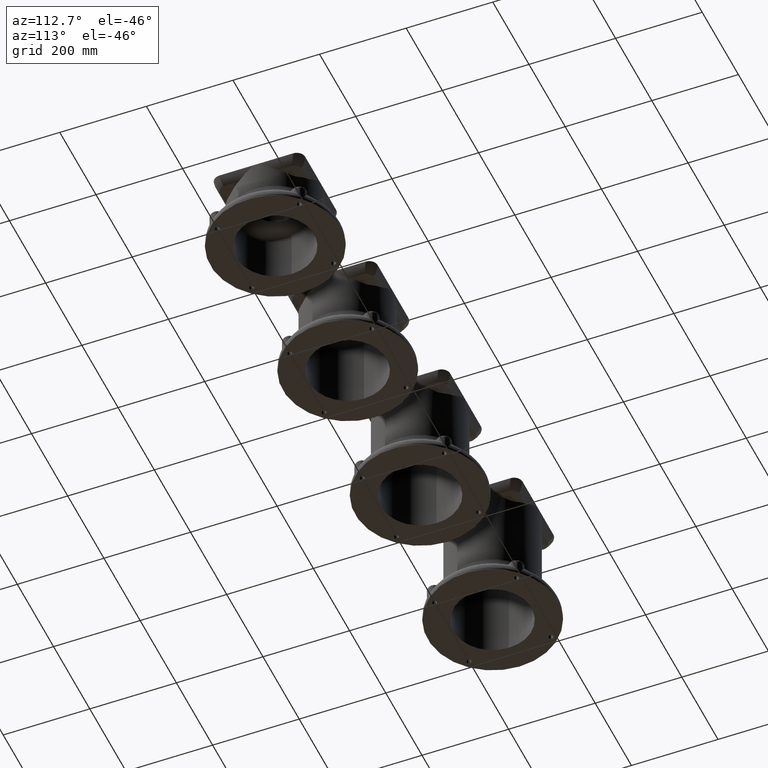
[diagram: clean part render]
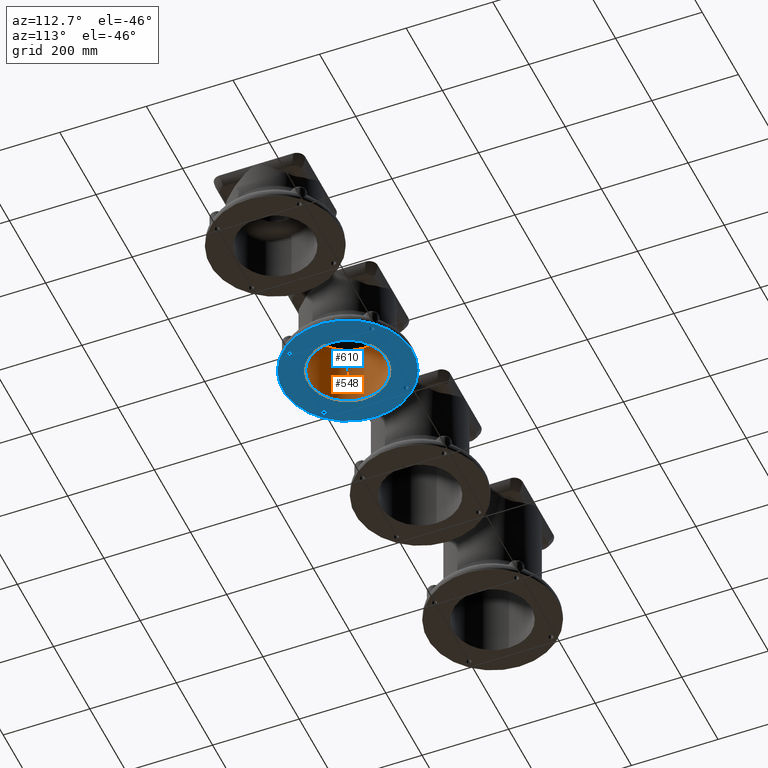
[diagram: same view with the hole feature highlighted: cylindrical wall and planar end face, labeled with their STEP entity ids]
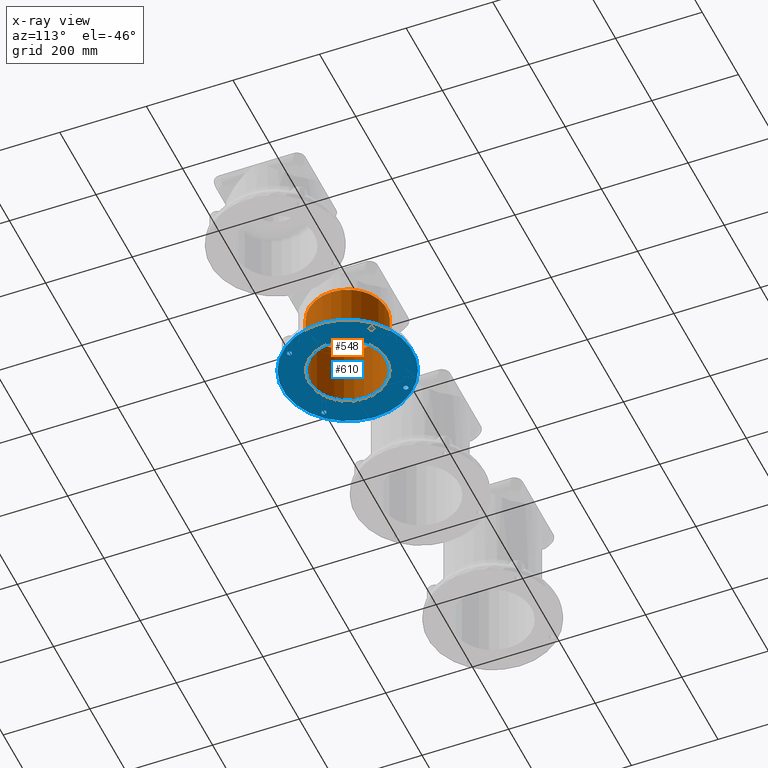
[diagram: x-ray of the same camera — body ghosted, the hole faces saturated]
A machine part, auxiliary view. The highlighted faces form one hole feature of diameter 180 mm: the cylindrical wall (entity #548, orange) and its adjacent planar end face (entity #610, blue) — they share a circular edge in the B-rep.
The next image is the same camera in x-ray (body ghosted, the hole faces saturated) — the bore reads through the body.
Wall:
#548=ADVANCED_FACE('',(#1222,#1223),#1224,.F.);
#1222=FACE_OUTER_BOUND('',#4687,.T.);
#1223=FACE_OUTER_BOUND('',#4688,.T.);
#1224=CYLINDRICAL_SURFACE('',#4689,90.0);
#4687=EDGE_LOOP('',(#8733));
#4688=EDGE_LOOP('',(#8734));
#4689=AXIS2_PLACEMENT_3D('',#8735,#8736,#8737);
#8733=ORIENTED_EDGE('',*,*,#10582,.F.);
#8734=ORIENTED_EDGE('',*,*,#10635,.T.);
#8735=CARTESIAN_POINT('',(0.0,0.0,85.0));
#8736=DIRECTION('',(0.0,0.0,-1.0));
#8737=DIRECTION('',(-1.0,0.0,0.0));
#10582=EDGE_CURVE('',#11901,#11901,#11902,.T.);
#10635=EDGE_CURVE('',#11994,#11994,#11995,.T.);
#11901=VERTEX_POINT('',#17166);
#11902=CIRCLE('',#17167,90.0);
#11994=VERTEX_POINT('',#17845);
#11995=CIRCLE('',#17846,90.0);
#17166=CARTESIAN_POINT('',(90.0,0.0,-120.0));
#17167=AXIS2_PLACEMENT_3D('',#21487,#21488,#21489);
#17845=CARTESIAN_POINT('',(90.0,0.0,35.0));
#17846=AXIS2_PLACEMENT_3D('',#21504,#21505,#21506);
#21487=CARTESIAN_POINT('',(0.0,0.0,-120.0));
#21488=DIRECTION('',(0.0,0.0,1.0));
#21489=DIRECTION('',(1.0,0.0,0.0));
#21504=CARTESIAN_POINT('',(0.0,0.0,35.0));
#21505=DIRECTION('',(0.0,0.0,1.0));
#21506=DIRECTION('',(1.0,0.0,0.0));
End face:
#610=ADVANCED_FACE('',(#1357,#1358,#1359,#1360,#1361,#1362),#1363,.T.);
#1357=FACE_BOUND('',#5494,.T.);
#1358=FACE_BOUND('',#5495,.T.);
#1359=FACE_BOUND('',#5496,.T.);
#1360=FACE_BOUND('',#5497,.T.);
#1361=FACE_BOUND('',#5498,.T.);
#1362=FACE_OUTER_BOUND('',#5499,.T.);
#1363=PLANE('',#5500);
#5494=EDGE_LOOP('',(#9187));
#5495=EDGE_LOOP('',(#9188));
#5496=EDGE_LOOP('',(#9189));
#5497=EDGE_LOOP('',(#9190));
#5498=EDGE_LOOP('',(#9191));
#5499=EDGE_LOOP('',(#9192));
#5500=AXIS2_PLACEMENT_3D('',#9193,#9194,#9195);
#9187=ORIENTED_EDGE('',*,*,#10649,.T.);
#9188=ORIENTED_EDGE('',*,*,#10651,.T.);
#9189=ORIENTED_EDGE('',*,*,#10653,.T.);
#9190=ORIENTED_EDGE('',*,*,#10655,.T.);
#9191=ORIENTED_EDGE('',*,*,#10635,.F.);
#9192=ORIENTED_EDGE('',*,*,#10774,.T.);
#9193=CARTESIAN_POINT('',(0.0,0.0,35.0));
#9194=DIRECTION('',(0.0,0.0,1.0));
#9195=DIRECTION('',(1.0,0.0,0.0));
#10635=EDGE_CURVE('',#11994,#11994,#11995,.T.);
#10649=EDGE_CURVE('',#12016,#12016,#12017,.T.);
#10651=EDGE_CURVE('',#12020,#12020,#12021,.T.);
#10653=EDGE_CURVE('',#12024,#12024,#12025,.T.);
#10655=EDGE_CURVE('',#12028,#12028,#12029,.T.);
#10774=EDGE_CURVE('',#12208,#12208,#12209,.T.);
#11994=VERTEX_POINT('',#17845);
#11995=CIRCLE('',#17846,90.0);
#12016=VERTEX_POINT('',#18030);
#12017=CIRCLE('',#18031,5.5);
#12020=VERTEX_POINT('',#18034);
#12021=CIRCLE('',#18035,5.5);
#12024=VERTEX_POINT('',#18038);
#12025=CIRCLE('',#18039,5.5);
#12028=VERTEX_POINT('',#18042);
#12029=CIRCLE('',#18043,5.5);
#12208=VERTEX_POINT('',#18716);
#12209=CIRCLE('',#18717,150.0);
#17845=CARTESIAN_POINT('',(90.0,0.0,35.0));
#17846=AXIS2_PLACEMENT_3D('',#21504,#21505,#21506);
#18030=CARTESIAN_POINT('',(90.8632213824711,-90.8632213824714,35.0));
#18031=AXIS2_PLACEMENT_3D('',#21508,#21509,#21510);
#18034=CARTESIAN_POINT('',(-98.6413959755233,98.6413959755237,35.0));
#18035=AXIS2_PLACEMENT_3D('',#21514,#21515,#21516);
#18038=CARTESIAN_POINT('',(-98.6413959755237,-90.863221382471,35.0));
#18039=AXIS2_PLACEMENT_3D('',#21520,#21521,#21522);
#18042=CARTESIAN_POINT('',(90.8632213824714,90.8632213824714,35.0));
#18043=AXIS2_PLACEMENT_3D('',#21526,#21527,#21528);
#18716=CARTESIAN_POINT('',(150.0,0.0,35.0));
#18717=AXIS2_PLACEMENT_3D('',#21728,#21729,#21730);
#21504=CARTESIAN_POINT('',(0.0,0.0,35.0));
#21505=DIRECTION('',(0.0,0.0,1.0));
#21506=DIRECTION('',(1.0,0.0,0.0));
#21508=CARTESIAN_POINT('',(94.7523086789971,-94.7523086789974,35.0));
#21509=DIRECTION('',(4.32978028117746E-017,-4.32978028117747E-017,-1.0));
#21510=DIRECTION('',(-0.707106781186546,0.707106781186549,-6.12323399573677E-017));
#21514=CARTESIAN_POINT('',(-94.7523086789973,94.7523086789977,35.0));
#21515=DIRECTION('',(4.32978028117746E-017,-4.32978028117747E-017,-1.0));
#21516=DIRECTION('',(-0.707106781186546,0.707106781186549,-6.12323399573677E-017));
#21520=CARTESIAN_POINT('',(-94.7523086789977,-94.752308678997,35.0));
#21521=DIRECTION('',(4.32978028117746E-017,-4.32978028117747E-017,-1.0));
#21522=DIRECTION('',(-0.707106781186546,0.707106781186549,-6.12323399573677E-017));
#21526=CARTESIAN_POINT('',(94.7523086789974,94.7523086789974,35.0));
#21527=DIRECTION('',(4.32978028117747E-017,4.32978028117746E-017,-1.0));
#21528=DIRECTION('',(-0.707106781186549,-0.707106781186546,-6.12323399573677E-017));
#21728=CARTESIAN_POINT('',(0.0,0.0,35.0));
#21729=DIRECTION('',(0.0,0.0,1.0));
#21730=DIRECTION('',(1.0,0.0,0.0));